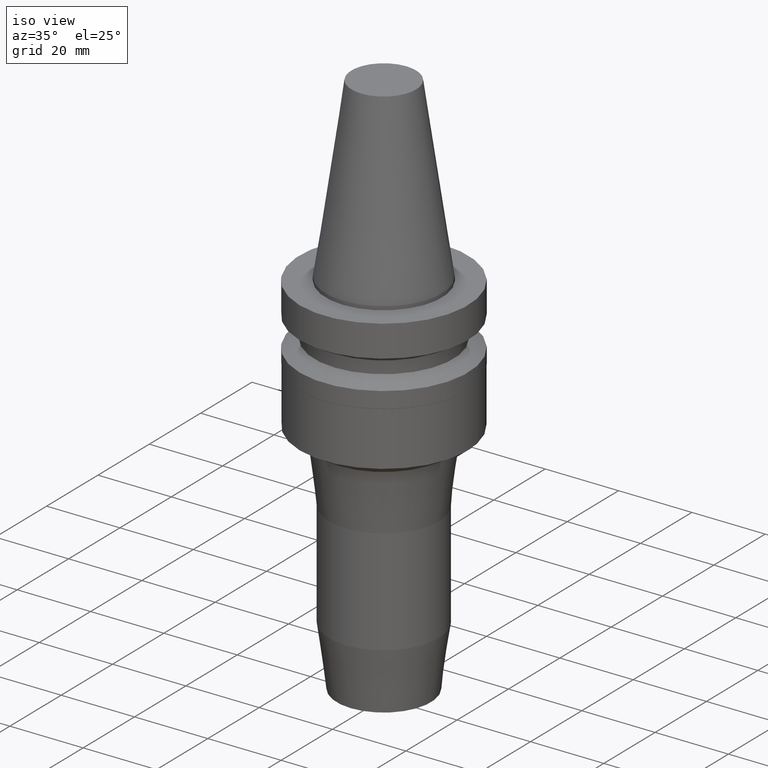
[diagram: clean part render]
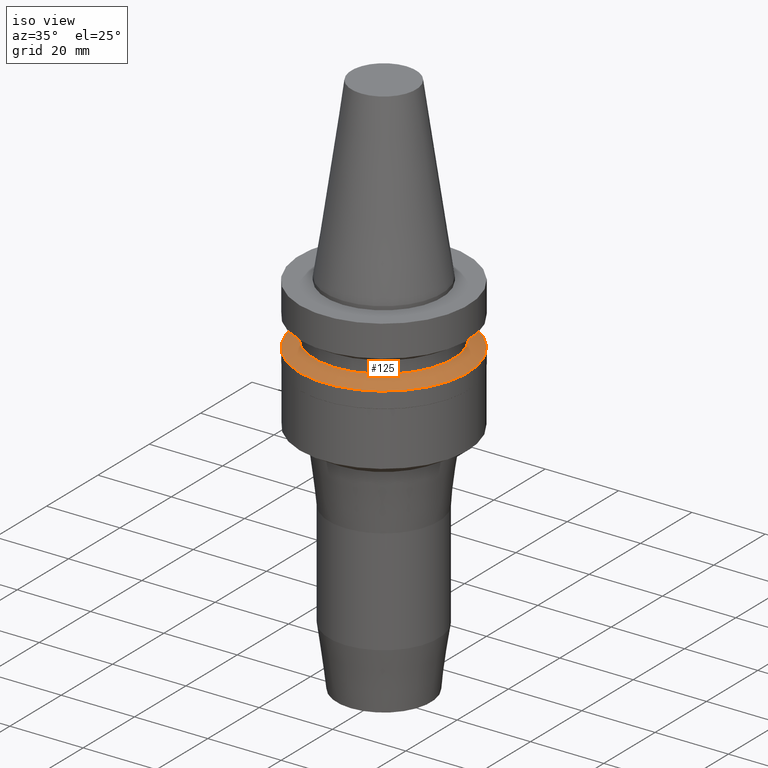
[diagram: same view with one face highlighted and labeled with its STEP entity id]
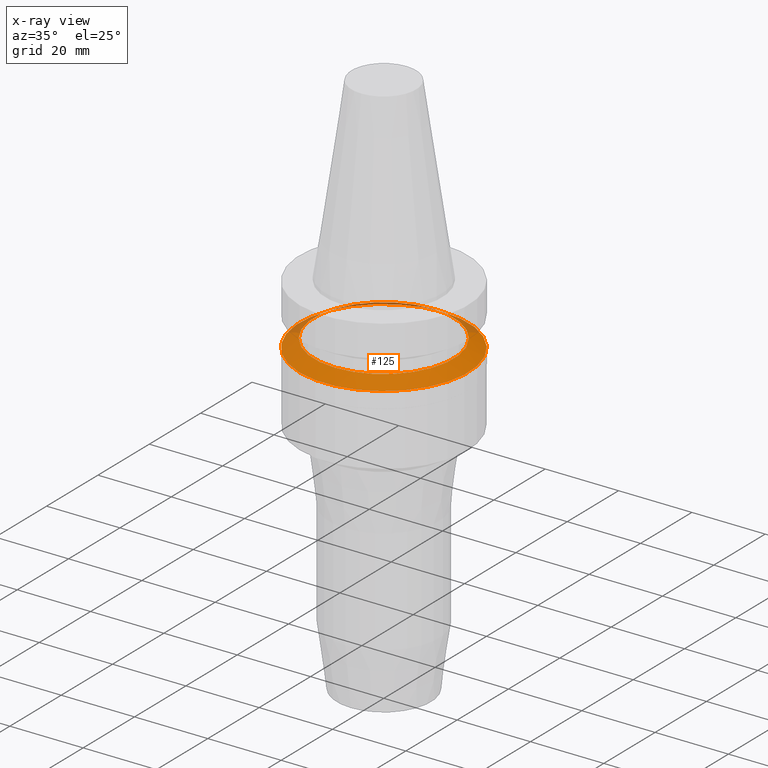
[diagram: x-ray of the same camera — body ghosted, the highlighted face saturated]
A machine part, iso view. The second image highlights one B-rep face of the part: STEP entity #125.
The next image is the same camera in x-ray: the body ghosted, the highlighted face saturated — about 9% of this face is hidden behind the body in this view.
In plain terms, the highlighted conical surface has half-angle 60 deg.
Its self-contained STEP definition (entity closure, byte-faithful):
#71=EDGE_CURVE('Unnamed[1]',#177,#177,#178,.T.);
#80=EDGE_CURVE('Unnamed[1]',#191,#191,#192,.T.);
#125=ADVANCED_FACE('Unnamed[1]',(#260,#261),#262,.T.);
#177=VERTEX_POINT('',#315);
#178=CIRCLE('',#316,19.0);
#191=VERTEX_POINT('',#333);
#192=CIRCLE('',#334,23.0);
#260=FACE_BOUND('',#419,.T.);
#261=FACE_BOUND('',#420,.T.);
#262=CONICAL_SURFACE('',#421,21.0,1.04719755058882);
#315=CARTESIAN_POINT('',(9.36279151221199E-016,19.0,-15.29059892));
#316=AXIS2_PLACEMENT_3D('',#471,#472,#473);
#333=CARTESIAN_POINT('',(1.07768918324967E-015,23.0,-17.6));
#334=AXIS2_PLACEMENT_3D('',#486,#487,#488);
#419=EDGE_LOOP('',(#560));
#420=EDGE_LOOP('',(#561));
#421=AXIS2_PLACEMENT_3D('',#562,#563,#564);
#471=CARTESIAN_POINT('',(9.36279151221199E-016,1.8725583024424E-015,-15.29059892));
#472=DIRECTION('',(6.12323399573677E-017,1.22464679914735E-016,-1.0));
#473=DIRECTION('',(-1.23259516440783E-032,1.0,1.22464679914735E-016));
#486=CARTESIAN_POINT('',(1.07768918324967E-015,2.15537836649934E-015,-17.6));
#487=DIRECTION('',(6.12323399573677E-017,1.22464679914735E-016,-1.0));
#488=DIRECTION('',(-1.23259516440783E-032,1.0,1.22464679914735E-016));
#560=ORIENTED_EDGE('',*,*,#80,.F.);
#561=ORIENTED_EDGE('',*,*,#71,.T.);
#562=CARTESIAN_POINT('',(1.00698416723543E-015,2.01396833447087E-015,-16.44529946));
#563=DIRECTION('',(6.12323399573677E-017,1.22464679914735E-016,-1.0));
#564=DIRECTION('',(-1.23259516440783E-032,1.0,1.22464679914735E-016));